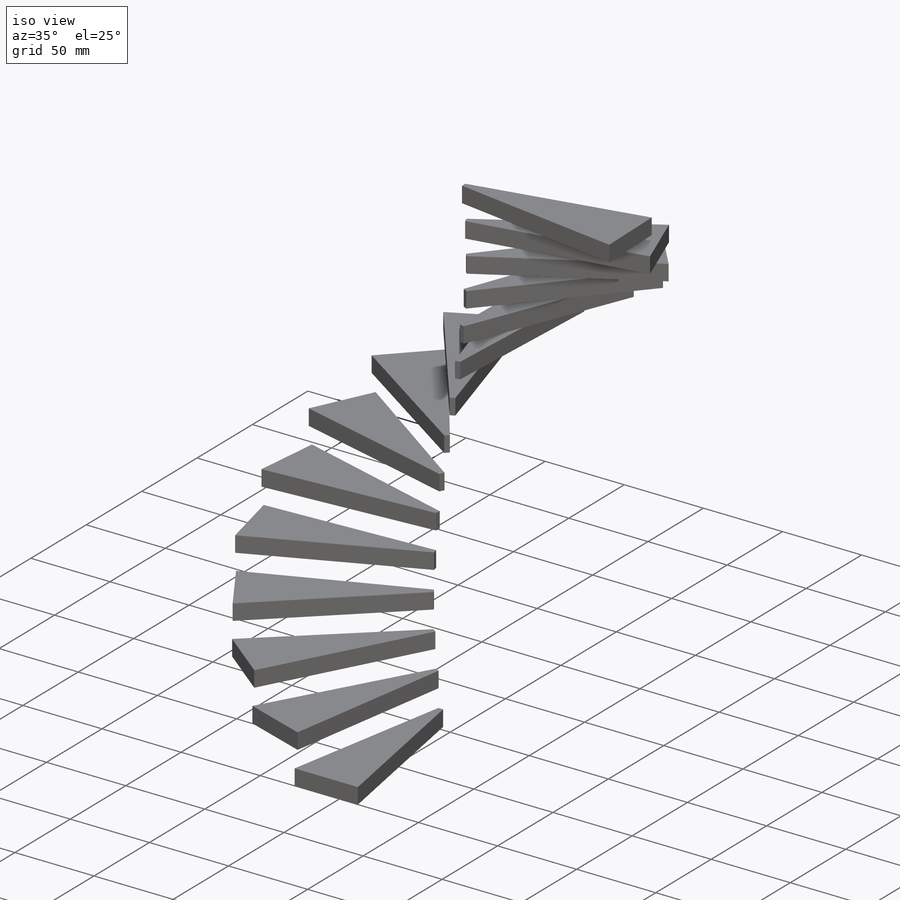
[diagram: iso view]
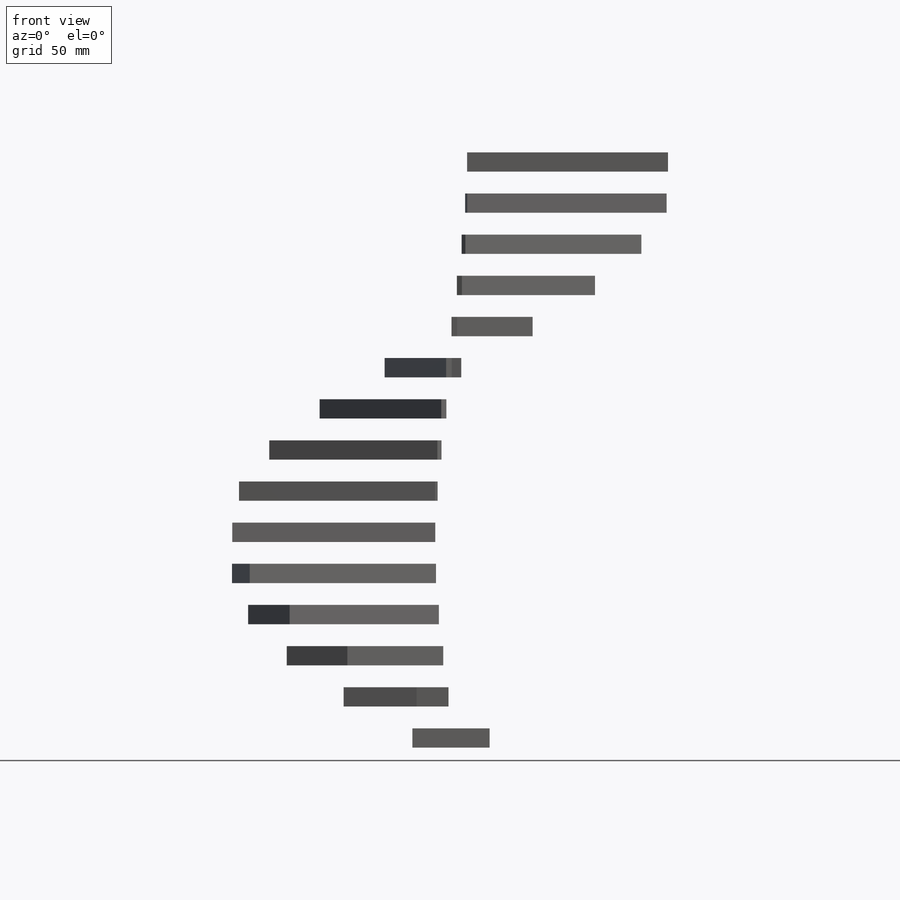
[diagram: front view]
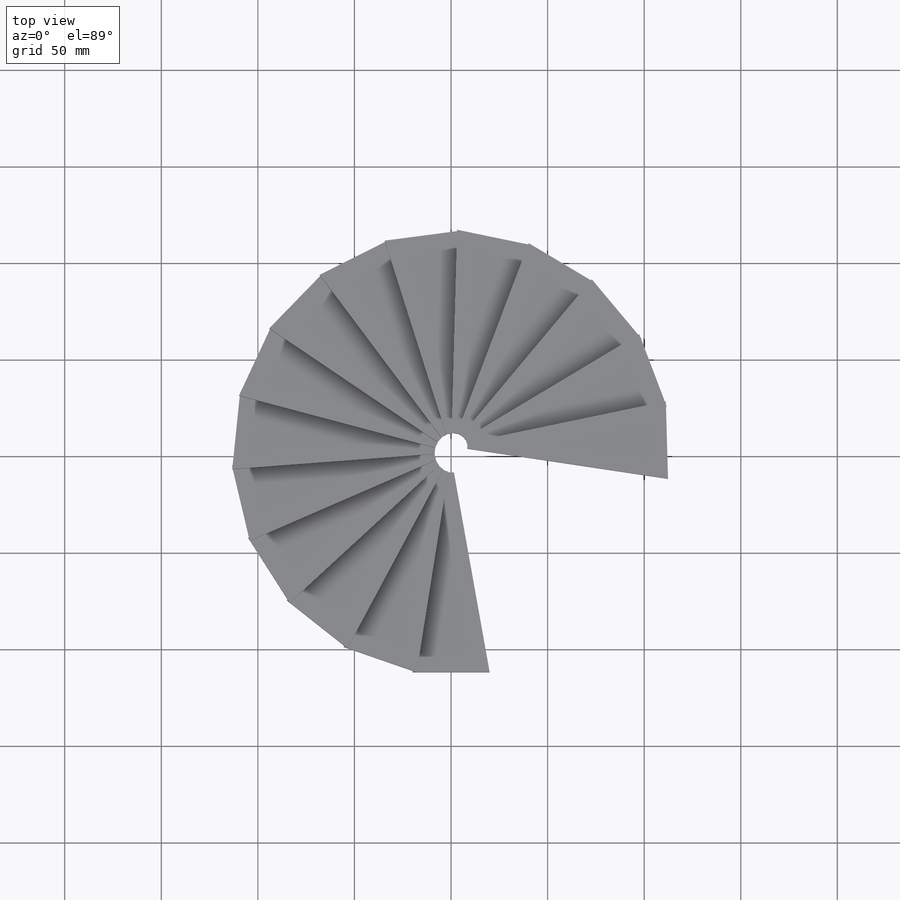
[diagram: top view]
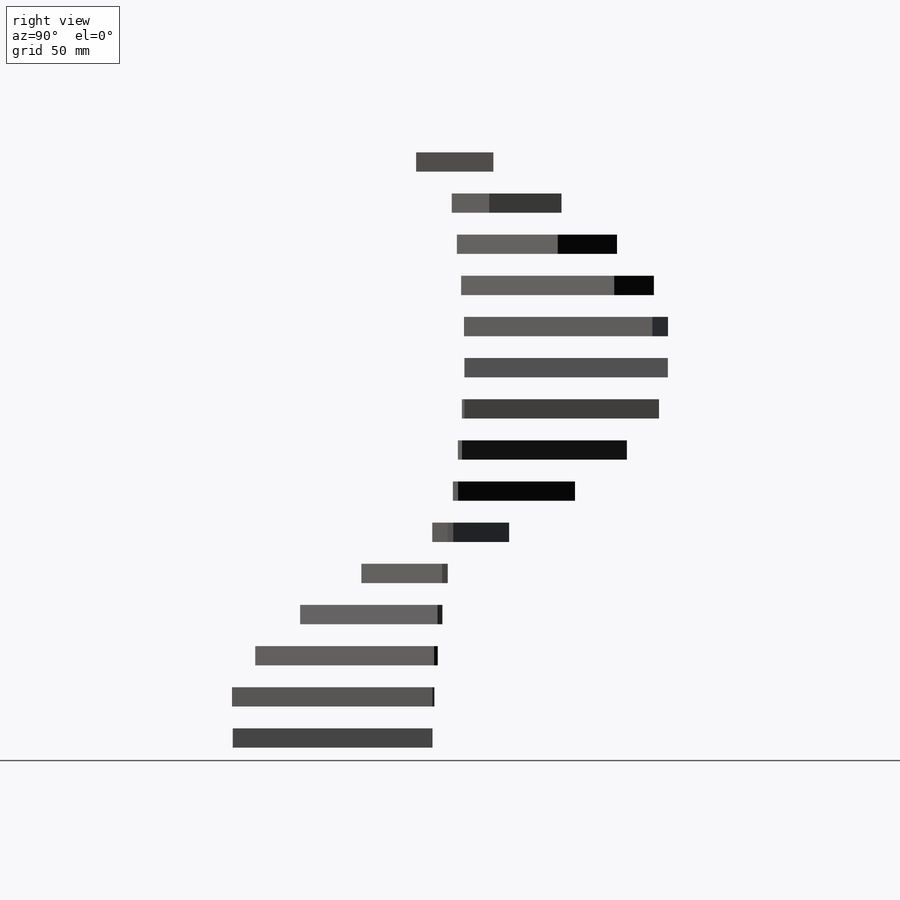
[diagram: right view]
SOLIDWORKS PART (.sldprt)
format: sldprt  version: not decoded by parser v0  size: 218,112 bytes
history: native  units: mm
features: sketch x3, material x1, helix x1, extrude x1 + 1 further entry (+13 scaffold rows collapsed)
feature tree (20):
  scaffold x13  (default folders/planes/origin — collapsed)
  material  "DURAL"
  sketch  "Skica1"  dims[D1=200.0mm]
  helix  "Šroubovice/spirála1"  Pitch=300mm
  sketch  "Skica2"  dims[c1.D1=40.0mm c1.D2=~93.076351mm c2.D2=10.0deg c3.D2=3.0mm]
  extrude  "Vysunout1"  Depth=10mm
  "Povrch-Vysunout1"
  sketch  "Skica1<2>"  dims[c1.D1=300.0mm c2.D1=15.0 c2.D3=50.0mm c2.D2=1.0 c2.D4=50.0mm]
decode coverage: 5 of 5 modeling features carry decoded parameters; 1 rows unclassified (native names shown)
note: ~ marks probable driven/reference dimensions
note: suppression state not decoded; provenance and decode notes live in map.json
